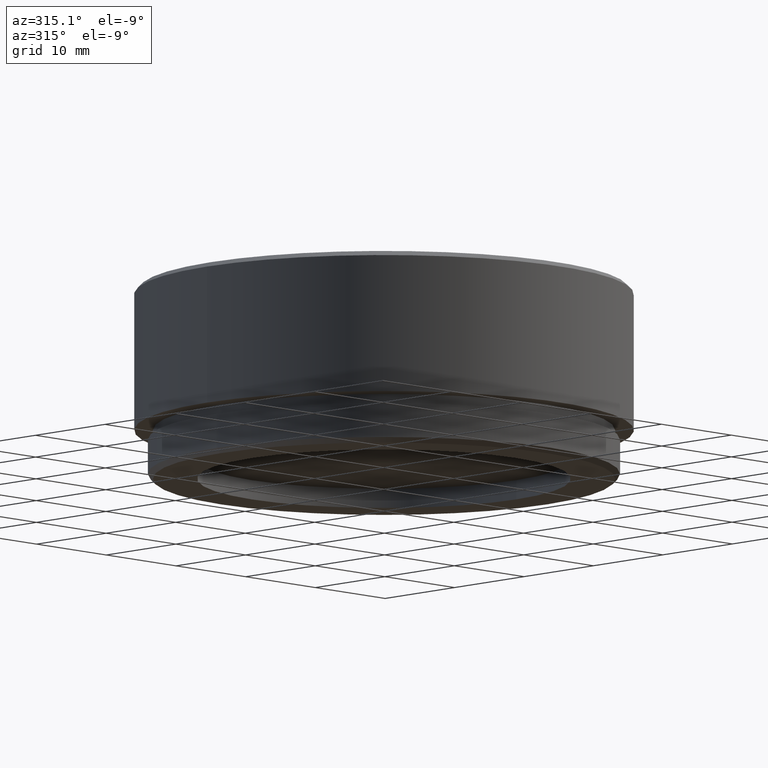
[diagram: clean part render]
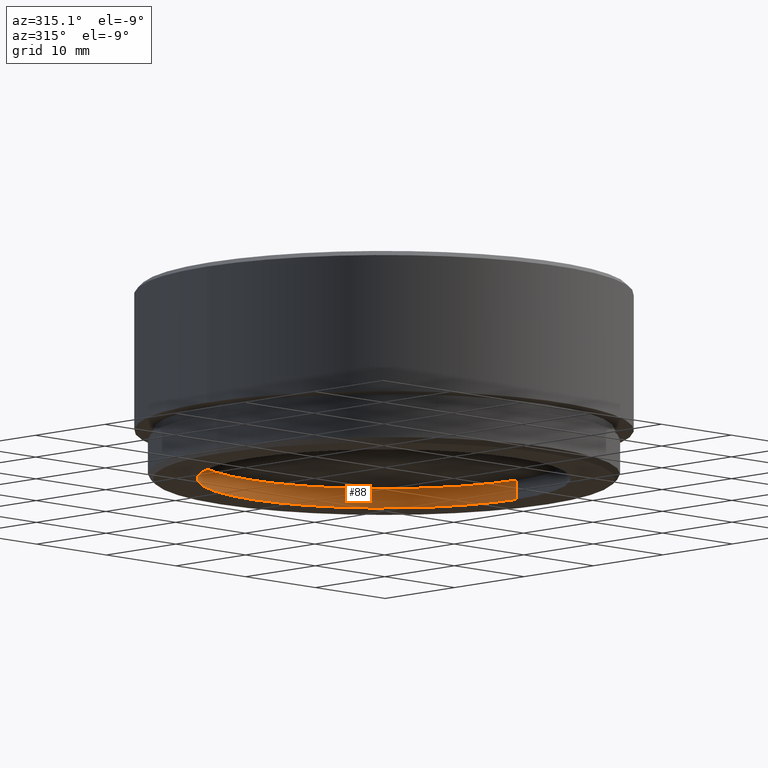
[diagram: same view with one face highlighted and labeled with its STEP entity id]
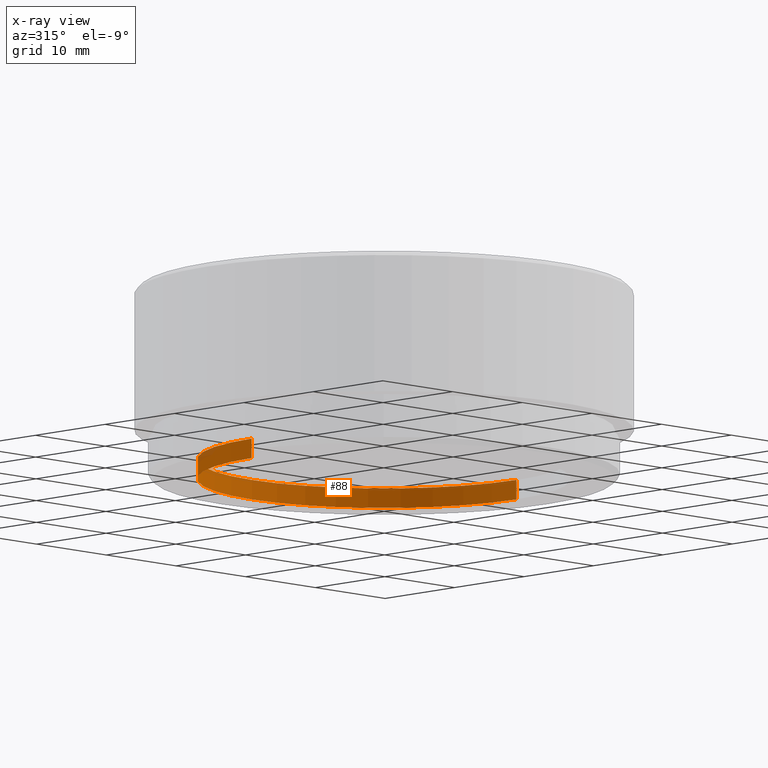
[diagram: x-ray of the same camera — body ghosted, the highlighted face saturated]
A machine part, auxiliary view. The second image highlights one B-rep face of the part: STEP entity #88.
The next image is the same camera in x-ray: the body ghosted, the highlighted face saturated — about 2% of this face is hidden behind the body in this view.
In plain terms, the highlighted cylindrical surface (partial cylindrical patch) has radius 19 mm, axis along (0, 0, -1).
Its self-contained STEP definition (entity closure, byte-faithful):
#13 = CARTESIAN_POINT ( 'NONE',  ( -19.00000000000000000, 0.000000000000000000, 2.000000000000000000 ) ) ;
#29 = VECTOR ( 'NONE', #1809, 1000.000000000000000 ) ;
#33 = EDGE_CURVE ( 'NONE', #1517, #351, #1125, .T. ) ;
#87 = DIRECTION ( 'NONE',  ( -1.000000000000000000, 0.000000000000000000, 0.000000000000000000 ) ) ;
#88 = ADVANCED_FACE ( 'NONE', ( #1434 ), #409, .F. ) ;
#109 = DIRECTION ( 'NONE',  ( -1.000000000000000000, 0.000000000000000000, 0.000000000000000000 ) ) ;
#174 = ORIENTED_EDGE ( 'NONE', *, *, #1471, .T. ) ;
#202 = CARTESIAN_POINT ( 'NONE',  ( 19.00000000000000000, 2.326828918379970970E-15, 2.000000000000000000 ) ) ;
#230 = DIRECTION ( 'NONE',  ( 0.000000000000000000, 0.000000000000000000, -1.000000000000000000 ) ) ;
#270 = ORIENTED_EDGE ( 'NONE', *, *, #709, .F. ) ;
#289 = AXIS2_PLACEMENT_3D ( 'NONE', #1760, #580, #869 ) ;
#318 = ORIENTED_EDGE ( 'NONE', *, *, #33, .T. ) ;
#351 = VERTEX_POINT ( 'NONE', #1520 ) ;
#398 = AXIS2_PLACEMENT_3D ( 'NONE', #1852, #230, #87 ) ;
#409 = CYLINDRICAL_SURFACE ( 'NONE', #1749, 19.00000000000000000 ) ;
#580 = DIRECTION ( 'NONE',  ( 0.000000000000000000, 0.000000000000000000, -1.000000000000000000 ) ) ;
#610 = DIRECTION ( 'NONE',  ( 0.000000000000000000, 0.000000000000000000, -1.000000000000000000 ) ) ;
#709 = EDGE_CURVE ( 'NONE', #1497, #1507, #1232, .T. ) ;
#752 = LINE ( 'NONE', #13, #1270 ) ;
#869 = DIRECTION ( 'NONE',  ( -1.000000000000000000, 0.000000000000000000, 0.000000000000000000 ) ) ;
#942 = CARTESIAN_POINT ( 'NONE',  ( -19.00000000000000000, 0.000000000000000000, 0.000000000000000000 ) ) ;
#1002 = ORIENTED_EDGE ( 'NONE', *, *, #1422, .F. ) ;
#1078 = EDGE_LOOP ( 'NONE', ( #1002, #270, #174, #318 ) ) ;
#1125 = CIRCLE ( 'NONE', #289, 19.00000000000000000 ) ;
#1232 = CIRCLE ( 'NONE', #398, 19.00000000000000000 ) ;
#1270 = VECTOR ( 'NONE', #610, 1000.000000000000000 ) ;
#1293 = DIRECTION ( 'NONE',  ( 0.000000000000000000, 0.000000000000000000, -1.000000000000000000 ) ) ;
#1422 = EDGE_CURVE ( 'NONE', #1507, #351, #1496, .T. ) ;
#1434 = FACE_OUTER_BOUND ( 'NONE', #1078, .T. ) ;
#1471 = EDGE_CURVE ( 'NONE', #1497, #1517, #752, .T. ) ;
#1496 = LINE ( 'NONE', #1790, #29 ) ;
#1497 = VERTEX_POINT ( 'NONE', #1534 ) ;
#1507 = VERTEX_POINT ( 'NONE', #202 ) ;
#1517 = VERTEX_POINT ( 'NONE', #942 ) ;
#1520 = CARTESIAN_POINT ( 'NONE',  ( 19.00000000000000000, 2.326828918379970970E-15, 0.000000000000000000 ) ) ;
#1534 = CARTESIAN_POINT ( 'NONE',  ( -19.00000000000000000, 0.000000000000000000, 2.000000000000000000 ) ) ;
#1742 = CARTESIAN_POINT ( 'NONE',  ( 0.000000000000000000, 0.000000000000000000, 2.000000000000000000 ) ) ;
#1749 = AXIS2_PLACEMENT_3D ( 'NONE', #1742, #1293, #109 ) ;
#1760 = CARTESIAN_POINT ( 'NONE',  ( 0.000000000000000000, 0.000000000000000000, 0.000000000000000000 ) ) ;
#1790 = CARTESIAN_POINT ( 'NONE',  ( 19.00000000000000000, 2.326828918379970970E-15, 2.000000000000000000 ) ) ;
#1809 = DIRECTION ( 'NONE',  ( 0.000000000000000000, 0.000000000000000000, -1.000000000000000000 ) ) ;
#1852 = CARTESIAN_POINT ( 'NONE',  ( 0.000000000000000000, 0.000000000000000000, 2.000000000000000000 ) ) ;